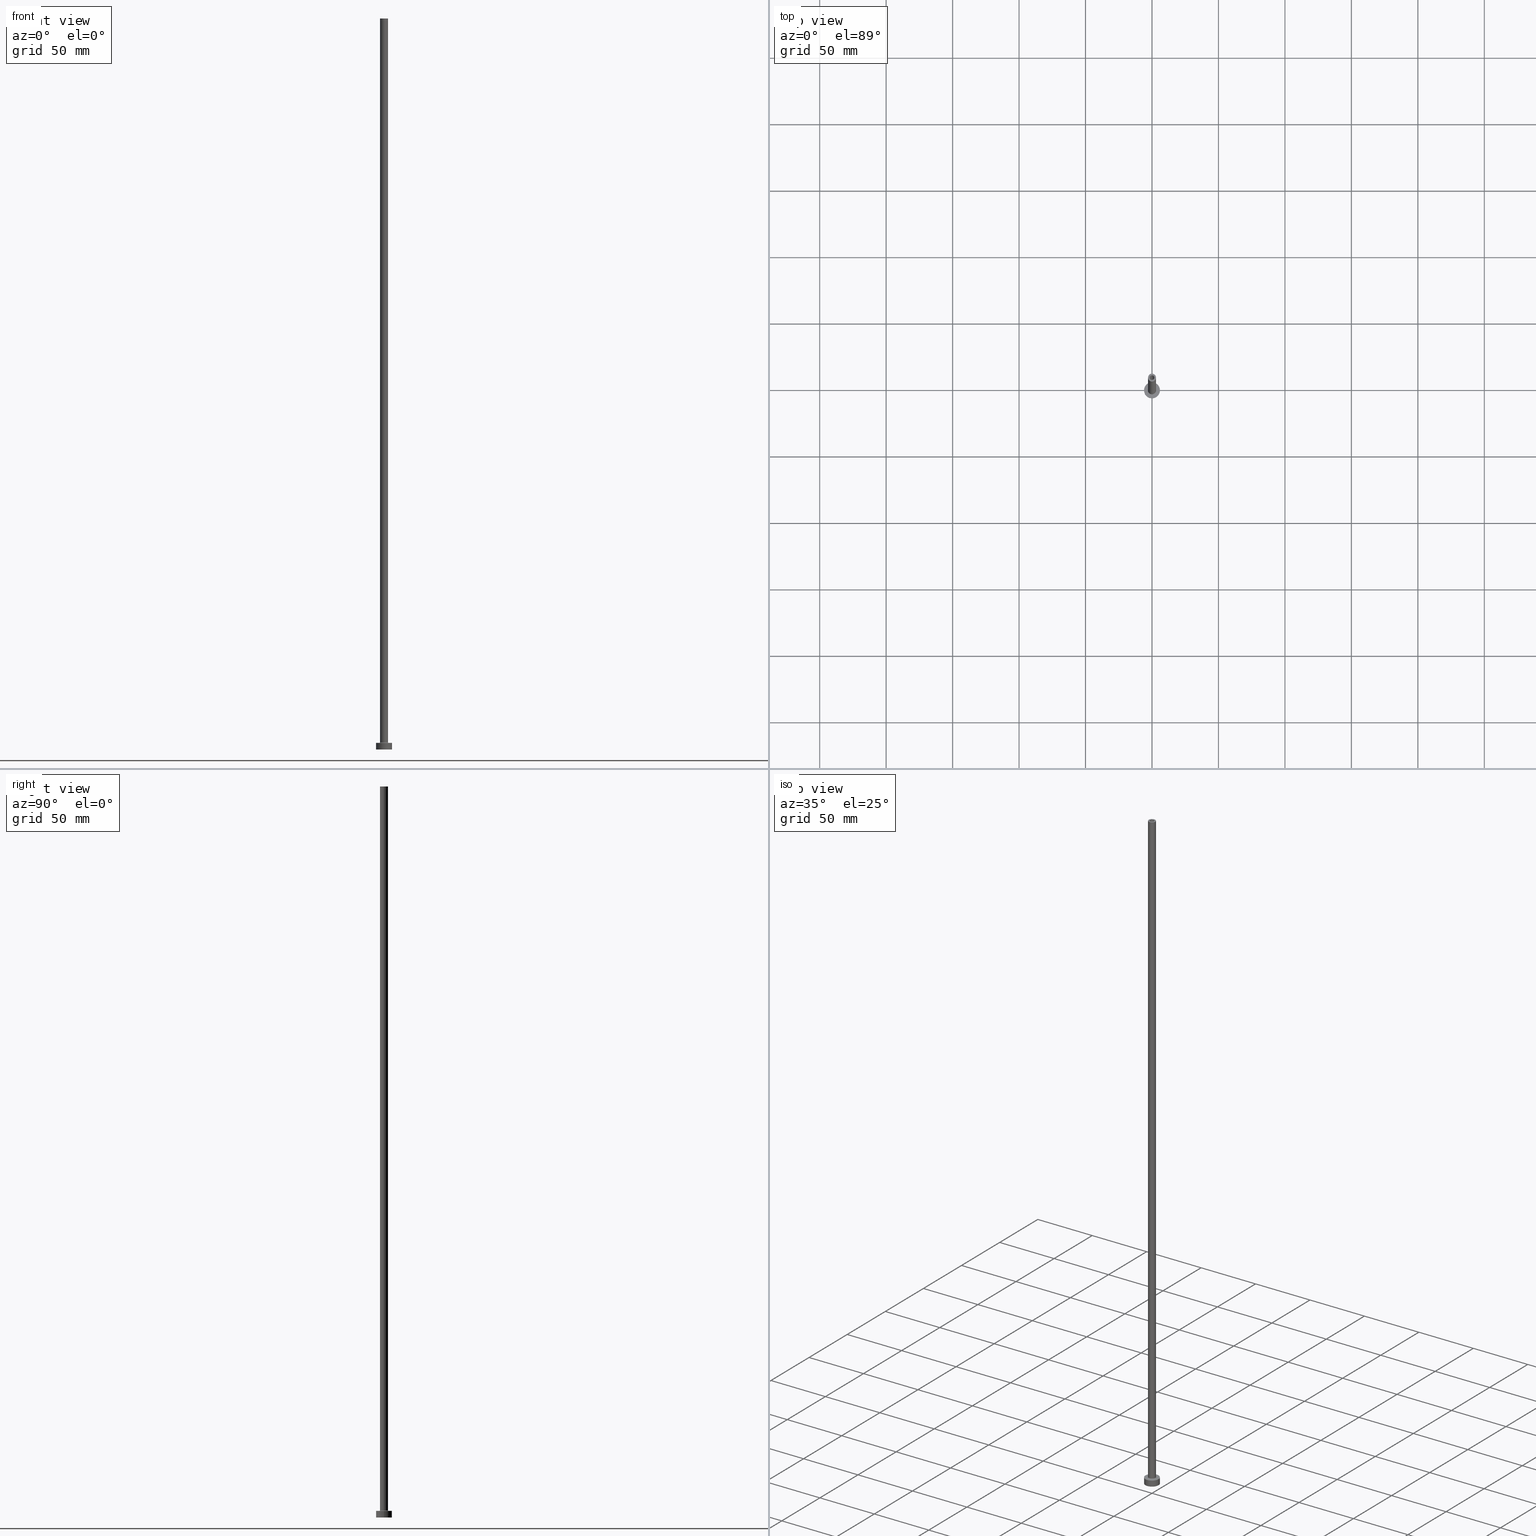
[diagram: canonical four-view strip — front | top / right | iso, engineering-drawing reading convention]
A machine part, canonical four-view strip (front | top / right | iso — engineering-drawing reading convention). The complete STEP part file that produces these views, byte-faithful:
ISO-10303-21;
HEADER;
FILE_DESCRIPTION (( 'STEP AP203' ),
    '1' );
FILE_NAME ('e05a.STEP',
    '2023-02-13T17:48:45',
    ( '' ),
    ( '' ),
    'SwSTEP 2.0',
    'SolidWorks 2019',
    '' );
FILE_SCHEMA (( 'CONFIG_CONTROL_DESIGN' ));
ENDSEC;

DATA;
#1 = APPLICATION_CONTEXT ( 'configuration controlled 3d designs of mechanical parts and assemblies' ) ;
#2 = AXIS2_PLACEMENT_3D ( 'NONE', #4, #146, #82 ) ;
#3 = EDGE_CURVE ( 'NONE', #26, #294, #441, .T. ) ;
#4 = CARTESIAN_POINT ( 'NONE',  ( 0.000000000000000000, 0.000000000000000000, 5.000000000000000000 ) ) ;
#5 = PERSON_AND_ORGANIZATION_ROLE ( 'design_owner' ) ;
#6 = DIRECTION ( 'NONE',  ( 1.000000000000000000, 0.000000000000000000, 0.000000000000000000 ) ) ;
#7 = EDGE_CURVE ( 'NONE', #94, #275, #210, .T. ) ;
#8 = MECHANICAL_CONTEXT ( 'NONE', #147, 'mechanical' ) ;
#9 = CARTESIAN_POINT ( 'NONE',  ( 3.000000000000000444, 3.673940397442060361E-16, 550.0000000000000000 ) ) ;
#10 = CARTESIAN_POINT ( 'NONE',  ( -1.899999999999999911, 0.000000000000000000, 505.0000000000000000 ) ) ;
#11 = VECTOR ( 'NONE', #45, 1000.000000000000000 ) ;
#12 = PERSON_AND_ORGANIZATION_ROLE ( 'design_supplier' ) ;
#13 = LOCAL_TIME ( 18, 48, 45.00000000000000000, #365 ) ;
#14 = DIRECTION ( 'NONE',  ( 0.000000000000000000, 0.000000000000000000, -1.000000000000000000 ) ) ;
#15 = EDGE_CURVE ( 'NONE', #160, #459, #411, .T. ) ;
#16 = ORIENTED_EDGE ( 'NONE', *, *, #410, .F. ) ;
#17 = LINE ( 'NONE', #9, #142 ) ;
#18 = DIRECTION ( 'NONE',  ( -1.000000000000000000, 0.000000000000000000, 0.000000000000000000 ) ) ;
#19 = VERTEX_POINT ( 'NONE', #290 ) ;
#20 = AXIS2_PLACEMENT_3D ( 'NONE', #56, #126, #226 ) ;
#21 = CIRCLE ( 'NONE', #59, 3.000000000000000444 ) ;
#22 = ADVANCED_FACE ( 'NONE', ( #258 ), #409, .F. ) ;
#23 = CALENDAR_DATE ( 2023, 13, 2 ) ;
#24 = AXIS2_PLACEMENT_3D ( 'NONE', #403, #322, #57 ) ;
#25 = TOROIDAL_SURFACE ( 'NONE', #268, 3.500000000000000444, 0.5000000000000000000 ) ;
#26 = VERTEX_POINT ( 'NONE', #384 ) ;
#27 = EDGE_LOOP ( 'NONE', ( #415, #256, #161, #254 ) ) ;
#28 = AXIS2_PLACEMENT_3D ( 'NONE', #117, #121, #152 ) ;
#29 = ORIENTED_EDGE ( 'NONE', *, *, #303, .T. ) ;
#30 = ADVANCED_FACE ( 'NONE', ( #379 ), #420, .T. ) ;
#31 = ORIENTED_EDGE ( 'NONE', *, *, #91, .T. ) ;
#32 = PLANE ( 'NONE',  #101 ) ;
#33 = VERTEX_POINT ( 'NONE', #235 ) ;
#34 = FACE_OUTER_BOUND ( 'NONE', #140, .T. ) ;
#35 = ADVANCED_FACE ( 'NONE', ( #42 ), #175, .F. ) ;
#36 = ORIENTED_EDGE ( 'NONE', *, *, #339, .T. ) ;
#37 = CARTESIAN_POINT ( 'NONE',  ( 1.899999999999999911, 2.326828918379971365E-16, 0.000000000000000000 ) ) ;
#38 = CARTESIAN_POINT ( 'NONE',  ( 0.000000000000000000, 0.000000000000000000, 5.000000000000000000 ) ) ;
#39 = UNCERTAINTY_MEASURE_WITH_UNIT (LENGTH_MEASURE( 1.000000000000000082E-05 ), #168, 'distance_accuracy_value', 'NONE');
#40 = EDGE_LOOP ( 'NONE', ( #190, #159 ) ) ;
#41 = CARTESIAN_POINT ( 'NONE',  ( 0.000000000000000000, 0.000000000000000000, 505.0000000000000000 ) ) ;
#42 = FACE_OUTER_BOUND ( 'NONE', #27, .T. ) ;
#43 = FACE_OUTER_BOUND ( 'NONE', #354, .T. ) ;
#44 = DIRECTION ( 'NONE',  ( 1.000000000000000000, 0.000000000000000000, 0.000000000000000000 ) ) ;
#45 = DIRECTION ( 'NONE',  ( 0.000000000000000000, 0.000000000000000000, -1.000000000000000000 ) ) ;
#46 = LOCAL_TIME ( 18, 48, 45.00000000000000000, #155 ) ;
#47 = VERTEX_POINT ( 'NONE', #372 ) ;
#48 = LINE ( 'NONE', #386, #11 ) ;
#49 = DATE_AND_TIME ( #23, #426 ) ;
#50 = DIRECTION ( 'NONE',  ( 1.000000000000000000, 0.000000000000000000, 0.000000000000000000 ) ) ;
#51 = APPROVAL_DATE_TIME ( #281, #122 ) ;
#52 = ADVANCED_FACE ( 'NONE', ( #65, #34 ), #273, .F. ) ;
#53 = DIRECTION ( 'NONE',  ( 0.000000000000000000, 0.000000000000000000, 1.000000000000000000 ) ) ;
#54 = CALENDAR_DATE ( 2023, 13, 2 ) ;
#55 = LOCAL_TIME ( 18, 48, 45.00000000000000000, #439 ) ;
#56 = CARTESIAN_POINT ( 'NONE',  ( 0.000000000000000000, 0.000000000000000000, 5.000000000000000000 ) ) ;
#57 = DIRECTION ( 'NONE',  ( 1.000000000000000000, 0.000000000000000000, 0.000000000000000000 ) ) ;
#58 = DIRECTION ( 'NONE',  ( 1.000000000000000000, 0.000000000000000000, 0.000000000000000000 ) ) ;
#59 = AXIS2_PLACEMENT_3D ( 'NONE', #454, #293, #416 ) ;
#60 = CIRCLE ( 'NONE', #118, 0.4999999999999995559 ) ;
#61 = ORIENTED_EDGE ( 'NONE', *, *, #78, .F. ) ;
#62 = PRODUCT_RELATED_PRODUCT_CATEGORY ( 'detail', '', ( #349 ) ) ;
#63 = DIRECTION ( 'NONE',  ( -1.000000000000000000, 1.224646799147354440E-16, 0.000000000000000000 ) ) ;
#64 = AXIS2_PLACEMENT_3D ( 'NONE', #445, #95, #238 ) ;
#65 = FACE_BOUND ( 'NONE', #40, .T. ) ;
#66 = EDGE_CURVE ( 'NONE', #76, #442, #357, .T. ) ;
#67 = DIRECTION ( 'NONE',  ( 0.000000000000000000, 0.000000000000000000, 1.000000000000000000 ) ) ;
#68 = DIRECTION ( 'NONE',  ( 0.000000000000000000, 0.000000000000000000, 1.000000000000000000 ) ) ;
#69 = DIRECTION ( 'NONE',  ( 1.000000000000000000, 0.000000000000000000, 0.000000000000000000 ) ) ;
#70 = AXIS2_PLACEMENT_3D ( 'NONE', #104, #109, #205 ) ;
#71 = CARTESIAN_POINT ( 'NONE',  ( -6.000000000000000888, 0.000000000000000000, 0.000000000000000000 ) ) ;
#72 = DATE_AND_TIME ( #382, #344 ) ;
#73 = CARTESIAN_POINT ( 'NONE',  ( -6.000000000000000888, 0.000000000000000000, 5.000000000000000000 ) ) ;
#74 = CIRCLE ( 'NONE', #329, 3.000000000000000444 ) ;
#75 = CIRCLE ( 'NONE', #314, 1.899999999999999911 ) ;
#76 = VERTEX_POINT ( 'NONE', #296 ) ;
#77 = FACE_OUTER_BOUND ( 'NONE', #173, .T. ) ;
#78 = EDGE_CURVE ( 'NONE', #459, #260, #21, .T. ) ;
#79 = DIRECTION ( 'NONE',  ( 0.000000000000000000, 0.000000000000000000, -1.000000000000000000 ) ) ;
#80 = DIRECTION ( 'NONE',  ( 0.000000000000000000, 0.000000000000000000, 1.000000000000000000 ) ) ;
#81 = VECTOR ( 'NONE', #340, 1000.000000000000000 ) ;
#82 = DIRECTION ( 'NONE',  ( 1.000000000000000000, 0.000000000000000000, 0.000000000000000000 ) ) ;
#83 = SECURITY_CLASSIFICATION ( '', '', #93 ) ;
#84 = CIRCLE ( 'NONE', #366, 0.5000000000000004441 ) ;
#85 = FACE_OUTER_BOUND ( 'NONE', #318, .T. ) ;
#86 = EDGE_CURVE ( 'NONE', #189, #33, #185, .T. ) ;
#87 = CARTESIAN_POINT ( 'NONE',  ( 0.000000000000000000, 0.000000000000000000, 550.0000000000000000 ) ) ;
#88 = DIRECTION ( 'NONE',  ( 0.000000000000000000, 0.000000000000000000, -1.000000000000000000 ) ) ;
#89 = AXIS2_PLACEMENT_3D ( 'NONE', #87, #438, #119 ) ;
#90 = AXIS2_PLACEMENT_3D ( 'NONE', #274, #79, #197 ) ;
#91 = EDGE_CURVE ( 'NONE', #94, #26, #106, .T. ) ;
#92 = ORIENTED_EDGE ( 'NONE', *, *, #335, .F. ) ;
#93 = SECURITY_CLASSIFICATION_LEVEL ( 'unclassified' ) ;
#94 = VERTEX_POINT ( 'NONE', #242 ) ;
#95 = DIRECTION ( 'NONE',  ( 0.000000000000000000, 0.000000000000000000, -1.000000000000000000 ) ) ;
#96 = AXIS2_PLACEMENT_3D ( 'NONE', #179, #219, #214 ) ;
#97 = VECTOR ( 'NONE', #14, 1000.000000000000000 ) ;
#98 = CARTESIAN_POINT ( 'NONE',  ( -3.500000000000000444, 4.286263797015737088E-16, 5.499999999999949374 ) ) ;
#99 = ORIENTED_EDGE ( 'NONE', *, *, #316, .F. ) ;
#100 = DIRECTION ( 'NONE',  ( -0.000000000000000000, -0.000000000000000000, -1.000000000000000000 ) ) ;
#101 = AXIS2_PLACEMENT_3D ( 'NONE', #299, #68, #375 ) ;
#102 = AXIS2_PLACEMENT_3D ( 'NONE', #38, #319, #432 ) ;
#103 = ORIENTED_EDGE ( 'NONE', *, *, #272, .F. ) ;
#104 = CARTESIAN_POINT ( 'NONE',  ( 0.000000000000000000, 0.000000000000000000, 5.000000000000000000 ) ) ;
#105 = VERTEX_POINT ( 'NONE', #383 ) ;
#106 = LINE ( 'NONE', #108, #368 ) ;
#107 = CARTESIAN_POINT ( 'NONE',  ( 0.000000000000000000, 0.000000000000000000, 5.499999999999949374 ) ) ;
#108 = CARTESIAN_POINT ( 'NONE',  ( 6.000000000000000888, 7.347880794884120722E-16, 5.000000000000000000 ) ) ;
#109 = DIRECTION ( 'NONE',  ( -0.000000000000000000, -0.000000000000000000, -1.000000000000000000 ) ) ;
#110 = DIRECTION ( 'NONE',  ( -0.000000000000000000, -0.000000000000000000, -1.000000000000000000 ) ) ;
#111 = DIRECTION ( 'NONE',  ( -1.000000000000000000, 0.000000000000000000, 0.000000000000000000 ) ) ;
#112 = CARTESIAN_POINT ( 'NONE',  ( 0.000000000000000000, 0.000000000000000000, 5.499999999999949374 ) ) ;
#113 = ORIENTED_EDGE ( 'NONE', *, *, #339, .F. ) ;
#114 = CARTESIAN_POINT ( 'NONE',  ( 3.500000000000000444, 0.000000000000000000, 5.499999999999949374 ) ) ;
#115 = AXIS2_PLACEMENT_3D ( 'NONE', #167, #345, #450 ) ;
#116 = DIRECTION ( 'NONE',  ( -0.000000000000000000, -0.000000000000000000, -1.000000000000000000 ) ) ;
#117 = CARTESIAN_POINT ( 'NONE',  ( 0.000000000000000000, 0.000000000000000000, 550.0000000000000000 ) ) ;
#118 = AXIS2_PLACEMENT_3D ( 'NONE', #98, #169, #63 ) ;
#119 = DIRECTION ( 'NONE',  ( 1.000000000000000000, 0.000000000000000000, -0.000000000000000000 ) ) ;
#120 = PERSON_AND_ORGANIZATION_ROLE ( 'classification_officer' ) ;
#121 = DIRECTION ( 'NONE',  ( -0.000000000000000000, -0.000000000000000000, -1.000000000000000000 ) ) ;
#122 = APPROVAL ( #397, 'NEUR�EN�' ) ;
#123 = FACE_OUTER_BOUND ( 'NONE', #286, .T. ) ;
#124 = DATE_TIME_ROLE ( 'classification_date' ) ;
#125 = PERSON_AND_ORGANIZATION ( #451, #229 ) ;
#126 = DIRECTION ( 'NONE',  ( 0.000000000000000000, 0.000000000000000000, 1.000000000000000000 ) ) ;
#127 = PERSON_AND_ORGANIZATION_ROLE ( 'creator' ) ;
#128 = ORIENTED_EDGE ( 'NONE', *, *, #133, .T. ) ;
#129 =( GEOMETRIC_REPRESENTATION_CONTEXT ( 3 ) GLOBAL_UNCERTAINTY_ASSIGNED_CONTEXT ( ( #39 ) ) GLOBAL_UNIT_ASSIGNED_CONTEXT ( ( #168, #141, #261 ) ) REPRESENTATION_CONTEXT ( 'NONE', 'WORKASPACE' ) );
#130 = ADVANCED_FACE ( 'NONE', ( #166, #77 ), #32, .F. ) ;
#131 = ORIENTED_EDGE ( 'NONE', *, *, #3, .F. ) ;
#132 = FACE_OUTER_BOUND ( 'NONE', #380, .T. ) ;
#133 = EDGE_CURVE ( 'NONE', #294, #26, #358, .T. ) ;
#134 = CC_DESIGN_APPROVAL ( #283, ( #83 ) ) ;
#135 = ORIENTED_EDGE ( 'NONE', *, *, #399, .F. ) ;
#136 = DIRECTION ( 'NONE',  ( 1.000000000000000000, 0.000000000000000000, 0.000000000000000000 ) ) ;
#137 = CARTESIAN_POINT ( 'NONE',  ( 0.000000000000000000, 0.000000000000000000, 550.0000000000000000 ) ) ;
#138 = PRODUCT_DEFINITION ( 'NEZN�M�', '', #446, #327 ) ;
#139 = CYLINDRICAL_SURFACE ( 'NONE', #90, 1.750000000000000000 ) ;
#140 = EDGE_LOOP ( 'NONE', ( #447, #131 ) ) ;
#141 =( NAMED_UNIT ( * ) PLANE_ANGLE_UNIT ( ) SI_UNIT ( $, .RADIAN. ) );
#142 = VECTOR ( 'NONE', #440, 1000.000000000000000 ) ;
#143 = APPROVAL_PERSON_ORGANIZATION ( #249, #262, #457 ) ;
#144 = ORIENTED_EDGE ( 'NONE', *, *, #421, .F. ) ;
#145 = ORIENTED_EDGE ( 'NONE', *, *, #396, .F. ) ;
#146 = DIRECTION ( 'NONE',  ( -0.000000000000000000, -0.000000000000000000, -1.000000000000000000 ) ) ;
#147 = APPLICATION_CONTEXT ( 'configuration controlled 3d designs of mechanical parts and assemblies' ) ;
#148 = PLANE ( 'NONE',  #89 ) ;
#149 = ADVANCED_FACE ( 'NONE', ( #132 ), #174, .T. ) ;
#150 = CIRCLE ( 'NONE', #413, 1.750000000000000000 ) ;
#151 = ORIENTED_EDGE ( 'NONE', *, *, #78, .T. ) ;
#152 = DIRECTION ( 'NONE',  ( -1.000000000000000000, 0.000000000000000000, 0.000000000000000000 ) ) ;
#153 = PERSON_AND_ORGANIZATION_ROLE ( 'creator' ) ;
#154 = ORIENTED_EDGE ( 'NONE', *, *, #373, .F. ) ;
#155 = COORDINATED_UNIVERSAL_TIME_OFFSET ( 1, 0, .AHEAD. ) ;
#156 = AXIS2_PLACEMENT_3D ( 'NONE', #332, #53, #284 ) ;
#157 = APPROVAL_PERSON_ORGANIZATION ( #125, #283, #337 ) ;
#158 = ORIENTED_EDGE ( 'NONE', *, *, #241, .F. ) ;
#159 = ORIENTED_EDGE ( 'NONE', *, *, #360, .F. ) ;
#160 = VERTEX_POINT ( 'NONE', #306 ) ;
#161 = ORIENTED_EDGE ( 'NONE', *, *, #360, .T. ) ;
#162 = CIRCLE ( 'NONE', #276, 1.750000000000000000 ) ;
#163 = DIRECTION ( 'NONE',  ( -0.000000000000000000, -0.000000000000000000, -1.000000000000000000 ) ) ;
#164 = ORIENTED_EDGE ( 'NONE', *, *, #3, .T. ) ;
#165 = EDGE_LOOP ( 'NONE', ( #342, #31, #164, #407 ) ) ;
#166 = FACE_BOUND ( 'NONE', #437, .T. ) ;
#167 = CARTESIAN_POINT ( 'NONE',  ( 0.000000000000000000, 0.000000000000000000, 0.000000000000000000 ) ) ;
#168 =( LENGTH_UNIT ( ) NAMED_UNIT ( * ) SI_UNIT ( .MILLI., .METRE. ) );
#169 = DIRECTION ( 'NONE',  ( 1.224646799147353207E-16, 1.000000000000000000, -0.000000000000000000 ) ) ;
#170 = DIRECTION ( 'NONE',  ( 0.000000000000000000, 0.000000000000000000, 1.000000000000000000 ) ) ;
#171 = APPROVAL_STATUS ( 'not_yet_approved' ) ;
#172 = CARTESIAN_POINT ( 'NONE',  ( -1.750000000000000000, 0.000000000000000000, 550.0000000000000000 ) ) ;
#173 = EDGE_LOOP ( 'NONE', ( #404, #239 ) ) ;
#174 = CYLINDRICAL_SURFACE ( 'NONE', #350, 6.000000000000000888 ) ;
#175 = CYLINDRICAL_SURFACE ( 'NONE', #192, 1.899999999999999911 ) ;
#176 = DIRECTION ( 'NONE',  ( -1.000000000000000000, 0.000000000000000000, 0.000000000000000000 ) ) ;
#177 = FACE_BOUND ( 'NONE', #301, .T. ) ;
#178 = FACE_BOUND ( 'NONE', #388, .T. ) ;
#179 = CARTESIAN_POINT ( 'NONE',  ( 0.000000000000000000, 0.000000000000000000, 5.000000000000000000 ) ) ;
#180 = CARTESIAN_POINT ( 'NONE',  ( 3.000000000000000444, 3.673940397442060361E-16, 5.499999999999949374 ) ) ;
#181 = EDGE_CURVE ( 'NONE', #231, #47, #162, .T. ) ;
#182 = TOROIDAL_SURFACE ( 'NONE', #330, 3.500000000000000444, 0.5000000000000000000 ) ;
#183 = PERSON_AND_ORGANIZATION ( #451, #229 ) ;
#184 = CARTESIAN_POINT ( 'NONE',  ( 0.000000000000000000, 0.000000000000000000, 550.0000000000000000 ) ) ;
#185 = CIRCLE ( 'NONE', #228, 1.899999999999999911 ) ;
#186 = ADVANCED_FACE ( 'NONE', ( #177, #278 ), #148, .T. ) ;
#187 = ORIENTED_EDGE ( 'NONE', *, *, #364, .T. ) ;
#188 = ORIENTED_EDGE ( 'NONE', *, *, #66, .T. ) ;
#189 = VERTEX_POINT ( 'NONE', #10 ) ;
#190 = ORIENTED_EDGE ( 'NONE', *, *, #66, .F. ) ;
#191 = CARTESIAN_POINT ( 'NONE',  ( 0.000000000000000000, 0.000000000000000000, 550.0000000000000000 ) ) ;
#192 = AXIS2_PLACEMENT_3D ( 'NONE', #460, #308, #111 ) ;
#193 = AXIS2_PLACEMENT_3D ( 'NONE', #184, #216, #6 ) ;
#194 = CIRCLE ( 'NONE', #2, 3.500000000000000444 ) ;
#195 = ORIENTED_EDGE ( 'NONE', *, *, #316, .T. ) ;
#196 = DIRECTION ( 'NONE',  ( 0.000000000000000000, 0.000000000000000000, 1.000000000000000000 ) ) ;
#197 = DIRECTION ( 'NONE',  ( -1.000000000000000000, 0.000000000000000000, 0.000000000000000000 ) ) ;
#198 = DIRECTION ( 'NONE',  ( -1.000000000000000000, 0.000000000000000000, 0.000000000000000000 ) ) ;
#199 = DIRECTION ( 'NONE',  ( 0.000000000000000000, 0.000000000000000000, -1.000000000000000000 ) ) ;
#200 = PRODUCT_DEFINITION_SHAPE ( 'NONE', 'NONE',  #138 ) ;
#201 = DIRECTION ( 'NONE',  ( 0.000000000000000000, 0.000000000000000000, 1.000000000000000000 ) ) ;
#202 = APPROVAL_DATE_TIME ( #72, #262 ) ;
#203 = CIRCLE ( 'NONE', #338, 6.000000000000000888 ) ;
#204 = CARTESIAN_POINT ( 'NONE',  ( 0.000000000000000000, 0.000000000000000000, 0.000000000000000000 ) ) ;
#205 = DIRECTION ( 'NONE',  ( -1.000000000000000000, 0.000000000000000000, 0.000000000000000000 ) ) ;
#206 = EDGE_CURVE ( 'NONE', #160, #265, #343, .T. ) ;
#207 = DIRECTION ( 'NONE',  ( 0.000000000000000000, 0.000000000000000000, 1.000000000000000000 ) ) ;
#208 = ORIENTED_EDGE ( 'NONE', *, *, #335, .T. ) ;
#209 = ADVANCED_FACE ( 'NONE', ( #123 ), #401, .F. ) ;
#210 = CIRCLE ( 'NONE', #20, 6.000000000000000888 ) ;
#211 = AXIS2_PLACEMENT_3D ( 'NONE', #351, #163, #377 ) ;
#212 = LINE ( 'NONE', #73, #263 ) ;
#213 = CIRCLE ( 'NONE', #193, 1.750000000000000000 ) ;
#214 = DIRECTION ( 'NONE',  ( 1.000000000000000000, 0.000000000000000000, 0.000000000000000000 ) ) ;
#215 = CIRCLE ( 'NONE', #24, 1.899999999999999911 ) ;
#216 = DIRECTION ( 'NONE',  ( 0.000000000000000000, 0.000000000000000000, 1.000000000000000000 ) ) ;
#217 = AXIS2_PLACEMENT_3D ( 'NONE', #362, #453, #176 ) ;
#218 = CYLINDRICAL_SURFACE ( 'NONE', #217, 3.000000000000000444 ) ;
#219 = DIRECTION ( 'NONE',  ( -0.000000000000000000, -0.000000000000000000, -1.000000000000000000 ) ) ;
#220 = PERSON_AND_ORGANIZATION ( #451, #229 ) ;
#221 = VECTOR ( 'NONE', #199, 1000.000000000000000 ) ;
#222 = DIRECTION ( 'NONE',  ( 0.000000000000000000, 0.000000000000000000, 1.000000000000000000 ) ) ;
#223 = PERSON_AND_ORGANIZATION ( #451, #229 ) ;
#224 = ORIENTED_EDGE ( 'NONE', *, *, #272, .T. ) ;
#225 = MANIFOLD_SOLID_BREP ( 'Odebrat vysunut�m4', #391 ) ;
#226 = DIRECTION ( 'NONE',  ( 1.000000000000000000, 0.000000000000000000, 0.000000000000000000 ) ) ;
#227 = SHAPE_DEFINITION_REPRESENTATION ( #200, #408 ) ;
#228 = AXIS2_PLACEMENT_3D ( 'NONE', #41, #196, #233 ) ;
#229 = ORGANIZATION ( 'NEUR�EN�', 'NEUR�EN�', '' ) ;
#230 = EDGE_LOOP ( 'NONE', ( #353, #288 ) ) ;
#231 = VERTEX_POINT ( 'NONE', #400 ) ;
#232 = ORIENTED_EDGE ( 'NONE', *, *, #15, .T. ) ;
#233 = DIRECTION ( 'NONE',  ( 1.000000000000000000, 0.000000000000000000, 0.000000000000000000 ) ) ;
#234 = VECTOR ( 'NONE', #458, 1000.000000000000000 ) ;
#235 = CARTESIAN_POINT ( 'NONE',  ( 1.899999999999999911, 2.326828918379971365E-16, 505.0000000000000000 ) ) ;
#236 = CC_DESIGN_PERSON_AND_ORGANIZATION_ASSIGNMENT ( #405, #12, ( #446 ) ) ;
#237 = CARTESIAN_POINT ( 'NONE',  ( 0.000000000000000000, 0.000000000000000000, 505.0000000000000000 ) ) ;
#238 = DIRECTION ( 'NONE',  ( -1.000000000000000000, 0.000000000000000000, 0.000000000000000000 ) ) ;
#239 = ORIENTED_EDGE ( 'NONE', *, *, #269, .F. ) ;
#240 = DIRECTION ( 'NONE',  ( 1.000000000000000000, 0.000000000000000000, 0.000000000000000000 ) ) ;
#241 = EDGE_CURVE ( 'NONE', #265, #260, #17, .T. ) ;
#242 = CARTESIAN_POINT ( 'NONE',  ( 6.000000000000000888, 7.347880794884120722E-16, 5.000000000000000000 ) ) ;
#243 = CARTESIAN_POINT ( 'NONE',  ( 0.000000000000000000, 0.000000000000000000, 5.000000000000000000 ) ) ;
#244 = CC_DESIGN_APPROVAL ( #122, ( #446 ) ) ;
#245 = LINE ( 'NONE', #427, #221 ) ;
#246 = FACE_OUTER_BOUND ( 'NONE', #230, .T. ) ;
#247 = DIRECTION ( 'NONE',  ( 0.000000000000000000, -1.000000000000000000, 0.000000000000000000 ) ) ;
#248 = AXIS2_PLACEMENT_3D ( 'NONE', #204, #67, #136 ) ;
#249 = PERSON_AND_ORGANIZATION ( #451, #229 ) ;
#250 = APPROVAL_ROLE ( '' ) ;
#251 = CARTESIAN_POINT ( 'NONE',  ( 0.000000000000000000, 0.000000000000000000, 510.3740115370177932 ) ) ;
#252 = COORDINATED_UNIVERSAL_TIME_OFFSET ( 1, 0, .AHEAD. ) ;
#253 = LINE ( 'NONE', #282, #97 ) ;
#254 = ORIENTED_EDGE ( 'NONE', *, *, #352, .F. ) ;
#255 = CARTESIAN_POINT ( 'NONE',  ( 3.000000000000000444, 3.673940397442060361E-16, 550.0000000000000000 ) ) ;
#256 = ORIENTED_EDGE ( 'NONE', *, *, #421, .T. ) ;
#257 = DATE_AND_TIME ( #324, #13 ) ;
#258 = FACE_OUTER_BOUND ( 'NONE', #336, .T. ) ;
#259 = EDGE_LOOP ( 'NONE', ( #331, #270 ) ) ;
#260 = VERTEX_POINT ( 'NONE', #180 ) ;
#261 =( NAMED_UNIT ( * ) SI_UNIT ( $, .STERADIAN. ) SOLID_ANGLE_UNIT ( ) );
#262 = APPROVAL ( #171, 'NEUR�EN�' ) ;
#263 = VECTOR ( 'NONE', #110, 1000.000000000000000 ) ;
#264 = ORIENTED_EDGE ( 'NONE', *, *, #241, .T. ) ;
#265 = VERTEX_POINT ( 'NONE', #255 ) ;
#266 = DIRECTION ( 'NONE',  ( -0.000000000000000000, -0.000000000000000000, -1.000000000000000000 ) ) ;
#267 = AXIS2_PLACEMENT_3D ( 'NONE', #112, #317, #378 ) ;
#268 = AXIS2_PLACEMENT_3D ( 'NONE', #107, #430, #69 ) ;
#269 = EDGE_CURVE ( 'NONE', #33, #189, #215, .T. ) ;
#270 = ORIENTED_EDGE ( 'NONE', *, *, #311, .T. ) ;
#271 = CARTESIAN_POINT ( 'NONE',  ( 0.000000000000000000, 0.000000000000000000, 5.000000000000000000 ) ) ;
#272 = EDGE_CURVE ( 'NONE', #105, #374, #213, .T. ) ;
#273 = PLANE ( 'NONE',  #115 ) ;
#274 = CARTESIAN_POINT ( 'NONE',  ( 0.000000000000000000, 0.000000000000000000, 550.0000000000000000 ) ) ;
#275 = VERTEX_POINT ( 'NONE', #435 ) ;
#276 = AXIS2_PLACEMENT_3D ( 'NONE', #237, #201, #44 ) ;
#277 = CIRCLE ( 'NONE', #359, 1.750000000000000000 ) ;
#278 = FACE_OUTER_BOUND ( 'NONE', #259, .T. ) ;
#279 = FACE_OUTER_BOUND ( 'NONE', #333, .T. ) ;
#280 = CIRCLE ( 'NONE', #96, 3.500000000000000444 ) ;
#281 = DATE_AND_TIME ( #334, #46 ) ;
#282 = CARTESIAN_POINT ( 'NONE',  ( -1.899999999999999911, 0.000000000000000000, 510.3740115370177932 ) ) ;
#283 = APPROVAL ( #367, 'NEUR�EN�' ) ;
#284 = DIRECTION ( 'NONE',  ( 1.000000000000000000, 0.000000000000000000, 0.000000000000000000 ) ) ;
#285 = AXIS2_PLACEMENT_3D ( 'NONE', #429, #363, #356 ) ;
#286 = EDGE_LOOP ( 'NONE', ( #144, #348, #387, #188 ) ) ;
#287 = VERTEX_POINT ( 'NONE', #395 ) ;
#288 = ORIENTED_EDGE ( 'NONE', *, *, #7, .T. ) ;
#289 = CC_DESIGN_DATE_AND_TIME_ASSIGNMENT ( #361, #124, ( #83 ) ) ;
#290 = CARTESIAN_POINT ( 'NONE',  ( 3.500000000000000444, 0.000000000000000000, 4.999999999999975131 ) ) ;
#291 = CIRCLE ( 'NONE', #267, 3.000000000000000444 ) ;
#292 = ORIENTED_EDGE ( 'NONE', *, *, #424, .F. ) ;
#293 = DIRECTION ( 'NONE',  ( 0.000000000000000000, 0.000000000000000000, 1.000000000000000000 ) ) ;
#294 = VERTEX_POINT ( 'NONE', #71 ) ;
#295 = ORIENTED_EDGE ( 'NONE', *, *, #206, .F. ) ;
#296 = CARTESIAN_POINT ( 'NONE',  ( -1.899999999999999911, 0.000000000000000000, 0.000000000000000000 ) ) ;
#297 = CC_DESIGN_PERSON_AND_ORGANIZATION_ASSIGNMENT ( #223, #120, ( #83 ) ) ;
#298 = AXIS2_PLACEMENT_3D ( 'NONE', #251, #88, #18 ) ;
#299 = CARTESIAN_POINT ( 'NONE',  ( 0.000000000000000000, 0.000000000000000000, 505.0000000000000000 ) ) ;
#300 = ORIENTED_EDGE ( 'NONE', *, *, #364, .F. ) ;
#301 = EDGE_LOOP ( 'NONE', ( #292, #103 ) ) ;
#302 = ORIENTED_EDGE ( 'NONE', *, *, #373, .T. ) ;
#303 = EDGE_CURVE ( 'NONE', #459, #287, #60, .T. ) ;
#304 = CC_DESIGN_PERSON_AND_ORGANIZATION_ASSIGNMENT ( #320, #5, ( #349 ) ) ;
#305 = ORIENTED_EDGE ( 'NONE', *, *, #424, .T. ) ;
#306 = CARTESIAN_POINT ( 'NONE',  ( -3.000000000000000444, 0.000000000000000000, 550.0000000000000000 ) ) ;
#307 = CARTESIAN_POINT ( 'NONE',  ( -3.000000000000000444, 0.000000000000000000, 5.499999999999949374 ) ) ;
#308 = DIRECTION ( 'NONE',  ( 0.000000000000000000, 0.000000000000000000, -1.000000000000000000 ) ) ;
#309 = COORDINATED_UNIVERSAL_TIME_OFFSET ( 1, 0, .AHEAD. ) ;
#310 = FACE_OUTER_BOUND ( 'NONE', #369, .T. ) ;
#311 = EDGE_CURVE ( 'NONE', #265, #160, #74, .T. ) ;
#312 = CARTESIAN_POINT ( 'NONE',  ( 0.000000000000000000, 0.000000000000000000, 5.499999999999949374 ) ) ;
#313 = DIRECTION ( 'NONE',  ( 0.000000000000000000, 0.000000000000000000, -1.000000000000000000 ) ) ;
#314 = AXIS2_PLACEMENT_3D ( 'NONE', #422, #116, #240 ) ;
#315 = CARTESIAN_POINT ( 'NONE',  ( 0.000000000000000000, 0.000000000000000000, 505.0000000000000000 ) ) ;
#316 = EDGE_CURVE ( 'NONE', #19, #287, #280, .T. ) ;
#317 = DIRECTION ( 'NONE',  ( 0.000000000000000000, 0.000000000000000000, 1.000000000000000000 ) ) ;
#318 = EDGE_LOOP ( 'NONE', ( #448, #264, #425, #385 ) ) ;
#319 = DIRECTION ( 'NONE',  ( 0.000000000000000000, 0.000000000000000000, 1.000000000000000000 ) ) ;
#320 = PERSON_AND_ORGANIZATION ( #451, #229 ) ;
#321 = DIRECTION ( 'NONE',  ( 1.000000000000000000, 0.000000000000000000, 0.000000000000000000 ) ) ;
#322 = DIRECTION ( 'NONE',  ( 0.000000000000000000, 0.000000000000000000, 1.000000000000000000 ) ) ;
#323 = APPLICATION_PROTOCOL_DEFINITION ( 'international standard', 'config_control_design', 1994, #147 ) ;
#324 = CALENDAR_DATE ( 2023, 13, 2 ) ;
#325 = CC_DESIGN_DATE_AND_TIME_ASSIGNMENT ( #257, #436, ( #138 ) ) ;
#326 = DIRECTION ( 'NONE',  ( 0.000000000000000000, 0.000000000000000000, 1.000000000000000000 ) ) ;
#327 = DESIGN_CONTEXT ( 'detailed design', #1, 'design' ) ;
#328 = PERSON_AND_ORGANIZATION ( #451, #229 ) ;
#329 = AXIS2_PLACEMENT_3D ( 'NONE', #191, #80, #50 ) ;
#330 = AXIS2_PLACEMENT_3D ( 'NONE', #312, #170, #452 ) ;
#331 = ORIENTED_EDGE ( 'NONE', *, *, #206, .T. ) ;
#332 = CARTESIAN_POINT ( 'NONE',  ( 0.000000000000000000, 0.000000000000000000, 550.0000000000000000 ) ) ;
#333 = EDGE_LOOP ( 'NONE', ( #158, #295, #232, #151 ) ) ;
#334 = CALENDAR_DATE ( 2023, 13, 2 ) ;
#335 = EDGE_CURVE ( 'NONE', #374, #231, #48, .T. ) ;
#336 = EDGE_LOOP ( 'NONE', ( #154, #224, #208, #113 ) ) ;
#337 = APPROVAL_ROLE ( '' ) ;
#338 = AXIS2_PLACEMENT_3D ( 'NONE', #243, #207, #394 ) ;
#339 = EDGE_CURVE ( 'NONE', #47, #231, #150, .T. ) ;
#340 = DIRECTION ( 'NONE',  ( -0.000000000000000000, -0.000000000000000000, -1.000000000000000000 ) ) ;
#341 = CARTESIAN_POINT ( 'NONE',  ( -3.000000000000000444, 0.000000000000000000, 550.0000000000000000 ) ) ;
#342 = ORIENTED_EDGE ( 'NONE', *, *, #7, .F. ) ;
#343 = CIRCLE ( 'NONE', #156, 3.000000000000000444 ) ;
#344 = LOCAL_TIME ( 18, 48, 45.00000000000000000, #309 ) ;
#345 = DIRECTION ( 'NONE',  ( 0.000000000000000000, 0.000000000000000000, 1.000000000000000000 ) ) ;
#346 = ADVANCED_FACE ( 'NONE', ( #279 ), #434, .T. ) ;
#347 = APPROVAL_DATE_TIME ( #49, #283 ) ;
#348 = ORIENTED_EDGE ( 'NONE', *, *, #269, .T. ) ;
#349 = PRODUCT ( 'e05a', 'e05a', '', ( #8 ) ) ;
#350 = AXIS2_PLACEMENT_3D ( 'NONE', #271, #266, #198 ) ;
#351 = CARTESIAN_POINT ( 'NONE',  ( 0.000000000000000000, 0.000000000000000000, 0.000000000000000000 ) ) ;
#352 = EDGE_CURVE ( 'NONE', #189, #76, #253, .T. ) ;
#353 = ORIENTED_EDGE ( 'NONE', *, *, #399, .T. ) ;
#354 = EDGE_LOOP ( 'NONE', ( #376, #16, #187, #145 ) ) ;
#355 = ADVANCED_FACE ( 'NONE', ( #178, #246 ), #431, .T. ) ;
#356 = DIRECTION ( 'NONE',  ( 1.000000000000000000, 0.000000000000000000, 0.000000000000000000 ) ) ;
#357 = CIRCLE ( 'NONE', #211, 1.899999999999999911 ) ;
#358 = CIRCLE ( 'NONE', #248, 6.000000000000000888 ) ;
#359 = AXIS2_PLACEMENT_3D ( 'NONE', #137, #389, #381 ) ;
#360 = EDGE_CURVE ( 'NONE', #442, #76, #75, .T. ) ;
#361 = DATE_AND_TIME ( #54, #55 ) ;
#362 = CARTESIAN_POINT ( 'NONE',  ( 0.000000000000000000, 0.000000000000000000, 550.0000000000000000 ) ) ;
#363 = DIRECTION ( 'NONE',  ( 0.000000000000000000, 0.000000000000000000, 1.000000000000000000 ) ) ;
#364 = EDGE_CURVE ( 'NONE', #260, #19, #84, .T. ) ;
#365 = COORDINATED_UNIVERSAL_TIME_OFFSET ( 1, 0, .AHEAD. ) ;
#366 = AXIS2_PLACEMENT_3D ( 'NONE', #114, #247, #313 ) ;
#367 = APPROVAL_STATUS ( 'not_yet_approved' ) ;
#368 = VECTOR ( 'NONE', #100, 1000.000000000000000 ) ;
#369 = EDGE_LOOP ( 'NONE', ( #61, #29, #99, #300 ) ) ;
#370 = APPROVAL_PERSON_ORGANIZATION ( #220, #122, #250 ) ;
#371 = CARTESIAN_POINT ( 'NONE',  ( 0.000000000000000000, 0.000000000000000000, 0.000000000000000000 ) ) ;
#372 = CARTESIAN_POINT ( 'NONE',  ( 1.750000000000000000, 2.143131898507868297E-16, 505.0000000000000000 ) ) ;
#373 = EDGE_CURVE ( 'NONE', #105, #47, #390, .T. ) ;
#374 = VERTEX_POINT ( 'NONE', #172 ) ;
#375 = DIRECTION ( 'NONE',  ( 1.000000000000000000, 0.000000000000000000, -0.000000000000000000 ) ) ;
#376 = ORIENTED_EDGE ( 'NONE', *, *, #303, .F. ) ;
#377 = DIRECTION ( 'NONE',  ( 1.000000000000000000, 0.000000000000000000, 0.000000000000000000 ) ) ;
#378 = DIRECTION ( 'NONE',  ( 1.000000000000000000, 0.000000000000000000, 0.000000000000000000 ) ) ;
#379 = FACE_OUTER_BOUND ( 'NONE', #165, .T. ) ;
#380 = EDGE_LOOP ( 'NONE', ( #414, #135, #423, #128 ) ) ;
#381 = DIRECTION ( 'NONE',  ( 1.000000000000000000, 0.000000000000000000, 0.000000000000000000 ) ) ;
#382 = CALENDAR_DATE ( 2023, 13, 2 ) ;
#383 = CARTESIAN_POINT ( 'NONE',  ( 1.750000000000000000, 2.143131898507868297E-16, 550.0000000000000000 ) ) ;
#384 = CARTESIAN_POINT ( 'NONE',  ( 6.000000000000000888, 7.347880794884120722E-16, 0.000000000000000000 ) ) ;
#385 = ORIENTED_EDGE ( 'NONE', *, *, #15, .F. ) ;
#386 = CARTESIAN_POINT ( 'NONE',  ( -1.750000000000000000, 0.000000000000000000, 550.0000000000000000 ) ) ;
#387 = ORIENTED_EDGE ( 'NONE', *, *, #352, .T. ) ;
#388 = EDGE_LOOP ( 'NONE', ( #195, #412 ) ) ;
#389 = DIRECTION ( 'NONE',  ( 0.000000000000000000, 0.000000000000000000, 1.000000000000000000 ) ) ;
#390 = LINE ( 'NONE', #461, #234 ) ;
#391 = CLOSED_SHELL ( 'NONE', ( #444, #35, #406, #402, #30, #149, #355, #52, #346, #186, #418, #209, #130, #22 ) ) ;
#392 = CC_DESIGN_PERSON_AND_ORGANIZATION_ASSIGNMENT ( #328, #153, ( #446 ) ) ;
#393 = CC_DESIGN_SECURITY_CLASSIFICATION ( #83, ( #446 ) ) ;
#394 = DIRECTION ( 'NONE',  ( 1.000000000000000000, 0.000000000000000000, 0.000000000000000000 ) ) ;
#395 = CARTESIAN_POINT ( 'NONE',  ( -3.500000000000000444, 4.286263797015737088E-16, 4.999999999999975131 ) ) ;
#396 = EDGE_CURVE ( 'NONE', #287, #19, #194, .T. ) ;
#397 = APPROVAL_STATUS ( 'not_yet_approved' ) ;
#398 = EDGE_CURVE ( 'NONE', #275, #294, #212, .T. ) ;
#399 = EDGE_CURVE ( 'NONE', #275, #94, #203, .T. ) ;
#400 = CARTESIAN_POINT ( 'NONE',  ( -1.750000000000000000, 0.000000000000000000, 505.0000000000000000 ) ) ;
#401 = CYLINDRICAL_SURFACE ( 'NONE', #298, 1.899999999999999911 ) ;
#402 = ADVANCED_FACE ( 'NONE', ( #85 ), #218, .T. ) ;
#403 = CARTESIAN_POINT ( 'NONE',  ( 0.000000000000000000, 0.000000000000000000, 505.0000000000000000 ) ) ;
#404 = ORIENTED_EDGE ( 'NONE', *, *, #86, .F. ) ;
#405 = PERSON_AND_ORGANIZATION ( #451, #229 ) ;
#406 = ADVANCED_FACE ( 'NONE', ( #310 ), #182, .F. ) ;
#407 = ORIENTED_EDGE ( 'NONE', *, *, #398, .F. ) ;
#408 = ADVANCED_BREP_SHAPE_REPRESENTATION ( 'e05a', ( #225, #285 ), #129 ) ;
#409 = CYLINDRICAL_SURFACE ( 'NONE', #64, 1.750000000000000000 ) ;
#410 = EDGE_CURVE ( 'NONE', #260, #459, #291, .T. ) ;
#411 = LINE ( 'NONE', #341, #81 ) ;
#412 = ORIENTED_EDGE ( 'NONE', *, *, #396, .T. ) ;
#413 = AXIS2_PLACEMENT_3D ( 'NONE', #315, #326, #321 ) ;
#414 = ORIENTED_EDGE ( 'NONE', *, *, #91, .F. ) ;
#415 = ORIENTED_EDGE ( 'NONE', *, *, #86, .T. ) ;
#416 = DIRECTION ( 'NONE',  ( 1.000000000000000000, 0.000000000000000000, 0.000000000000000000 ) ) ;
#417 = AXIS2_PLACEMENT_3D ( 'NONE', #371, #222, #58 ) ;
#418 = ADVANCED_FACE ( 'NONE', ( #43 ), #25, .F. ) ;
#419 = CC_DESIGN_APPROVAL ( #262, ( #138 ) ) ;
#420 = CYLINDRICAL_SURFACE ( 'NONE', #70, 6.000000000000000888 ) ;
#421 = EDGE_CURVE ( 'NONE', #33, #442, #245, .T. ) ;
#422 = CARTESIAN_POINT ( 'NONE',  ( 0.000000000000000000, 0.000000000000000000, 0.000000000000000000 ) ) ;
#423 = ORIENTED_EDGE ( 'NONE', *, *, #398, .T. ) ;
#424 = EDGE_CURVE ( 'NONE', #374, #105, #277, .T. ) ;
#425 = ORIENTED_EDGE ( 'NONE', *, *, #410, .T. ) ;
#426 = LOCAL_TIME ( 18, 48, 45.00000000000000000, #252 ) ;
#427 = CARTESIAN_POINT ( 'NONE',  ( 1.899999999999999911, 2.326828918379971365E-16, 510.3740115370177932 ) ) ;
#428 = ORIENTED_EDGE ( 'NONE', *, *, #181, .F. ) ;
#429 = CARTESIAN_POINT ( 'NONE',  ( 0.000000000000000000, 0.000000000000000000, 0.000000000000000000 ) ) ;
#430 = DIRECTION ( 'NONE',  ( 0.000000000000000000, 0.000000000000000000, 1.000000000000000000 ) ) ;
#431 = PLANE ( 'NONE',  #102 ) ;
#432 = DIRECTION ( 'NONE',  ( 1.000000000000000000, 0.000000000000000000, -0.000000000000000000 ) ) ;
#433 = APPLICATION_PROTOCOL_DEFINITION ( 'international standard', 'config_control_design', 1994, #1 ) ;
#434 = CYLINDRICAL_SURFACE ( 'NONE', #28, 3.000000000000000444 ) ;
#435 = CARTESIAN_POINT ( 'NONE',  ( -6.000000000000000888, 0.000000000000000000, 5.000000000000000000 ) ) ;
#436 = DATE_TIME_ROLE ( 'creation_date' ) ;
#437 = EDGE_LOOP ( 'NONE', ( #449, #36 ) ) ;
#438 = DIRECTION ( 'NONE',  ( 0.000000000000000000, 0.000000000000000000, 1.000000000000000000 ) ) ;
#439 = COORDINATED_UNIVERSAL_TIME_OFFSET ( 1, 0, .AHEAD. ) ;
#440 = DIRECTION ( 'NONE',  ( -0.000000000000000000, -0.000000000000000000, -1.000000000000000000 ) ) ;
#441 = CIRCLE ( 'NONE', #417, 6.000000000000000888 ) ;
#442 = VERTEX_POINT ( 'NONE', #37 ) ;
#443 = CC_DESIGN_PERSON_AND_ORGANIZATION_ASSIGNMENT ( #183, #127, ( #138 ) ) ;
#444 = ADVANCED_FACE ( 'NONE', ( #456 ), #139, .F. ) ;
#445 = CARTESIAN_POINT ( 'NONE',  ( 0.000000000000000000, 0.000000000000000000, 550.0000000000000000 ) ) ;
#446 = PRODUCT_DEFINITION_FORMATION_WITH_SPECIFIED_SOURCE ( 'LIBOVOLN�', '', #349, .NOT_KNOWN. ) ;
#447 = ORIENTED_EDGE ( 'NONE', *, *, #133, .F. ) ;
#448 = ORIENTED_EDGE ( 'NONE', *, *, #311, .F. ) ;
#449 = ORIENTED_EDGE ( 'NONE', *, *, #181, .T. ) ;
#450 = DIRECTION ( 'NONE',  ( 1.000000000000000000, 0.000000000000000000, -0.000000000000000000 ) ) ;
#451 = PERSON ( 'NEUR�EN�', 'NEUR�EN�', 'NEUR�EN�', ('NEUR�EN�'), ('NEUR�EN�'), ('NEUR�EN�') ) ;
#452 = DIRECTION ( 'NONE',  ( 1.000000000000000000, 0.000000000000000000, 0.000000000000000000 ) ) ;
#453 = DIRECTION ( 'NONE',  ( -0.000000000000000000, -0.000000000000000000, -1.000000000000000000 ) ) ;
#454 = CARTESIAN_POINT ( 'NONE',  ( 0.000000000000000000, 0.000000000000000000, 5.499999999999949374 ) ) ;
#455 = EDGE_LOOP ( 'NONE', ( #305, #302, #428, #92 ) ) ;
#456 = FACE_OUTER_BOUND ( 'NONE', #455, .T. ) ;
#457 = APPROVAL_ROLE ( '' ) ;
#458 = DIRECTION ( 'NONE',  ( 0.000000000000000000, 0.000000000000000000, -1.000000000000000000 ) ) ;
#459 = VERTEX_POINT ( 'NONE', #307 ) ;
#460 = CARTESIAN_POINT ( 'NONE',  ( 0.000000000000000000, 0.000000000000000000, 510.3740115370177932 ) ) ;
#461 = CARTESIAN_POINT ( 'NONE',  ( 1.750000000000000000, 2.143131898507868297E-16, 550.0000000000000000 ) ) ;
ENDSEC;
END-ISO-10303-21;
